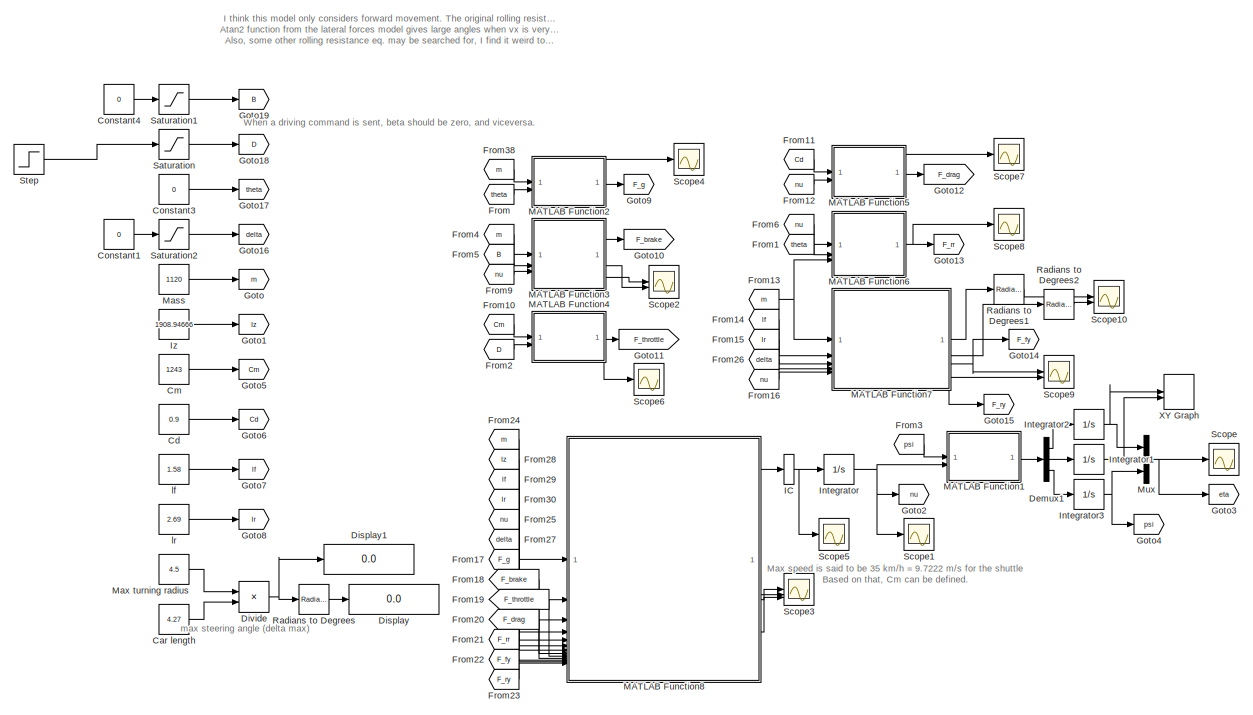
[diagram: root canvas - part 1/2, most of the canvas]
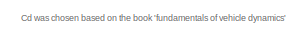
[diagram: root canvas - part 2/2, middle left region]
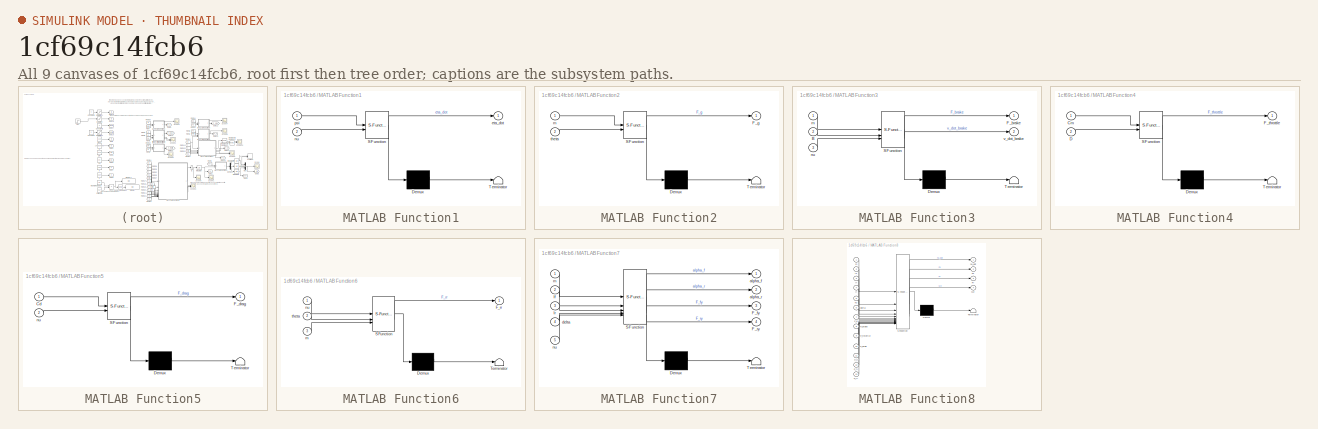
[diagram: thumbnail index - all 9 canvases of the model, root first then tree order]
MODEL slx_1cf69c14fcb6
KIND model
CONFIG AbsTol = 1e-4
CONFIG EnableMultiTasking = off
CONFIG FixedStep = 0.01
CONFIG MaxStep = auto
CONFIG MinStep = auto
CONFIG RelTol = 1e-4
CONFIG SampleTimeConstraint = Unconstrained
CONFIG SolverName = ode1be
CONFIG StartTime = 0.0
CONFIG StopTime = 100
BLOCK [Constant] Car length
  Value = 4.27
BLOCK [Constant] Cd
  Value = 0.9
BLOCK [Constant] Cm
  Value = 1243
BLOCK [Constant] Constant1
  Value = 0
BLOCK [Constant] Constant3
  Value = 0
BLOCK [Constant] Constant4
  Value = 0
BLOCK [Demux] Demux1
  Outputs = 3
BLOCK [Display] Display
  Decimation = 1
BLOCK [Display] Display1
  Decimation = 1
BLOCK [Product] Divide
  Inputs = */
BLOCK [From] From
  GotoTag = theta
BLOCK [From] From1
  GotoTag = theta
BLOCK [From] From10
  GotoTag = Cm
BLOCK [From] From11
  GotoTag = Cd
BLOCK [From] From12
  GotoTag = nu
BLOCK [From] From13
  GotoTag = m
BLOCK [From] From14
  GotoTag = lf
BLOCK [From] From15
  GotoTag = lr
BLOCK [From] From16
  GotoTag = nu
BLOCK [From] From17
  GotoTag = F_g
BLOCK [From] From18
  GotoTag = F_brake
BLOCK [From] From19
  GotoTag = F_throttle
BLOCK [From] From2
  GotoTag = D
BLOCK [From] From20
  GotoTag = F_drag
BLOCK [From] From21
  GotoTag = F_rr
BLOCK [From] From22
  GotoTag = F_fy
BLOCK [From] From23
  GotoTag = F_ry
BLOCK [From] From24
  GotoTag = m
BLOCK [From] From25
  GotoTag = nu
BLOCK [From] From26
  GotoTag = delta
BLOCK [From] From27
  GotoTag = delta
BLOCK [From] From28
  GotoTag = Iz
BLOCK [From] From29
  GotoTag = lf
BLOCK [From] From3
  GotoTag = psi
BLOCK [From] From30
  GotoTag = lr
BLOCK [From] From38
  GotoTag = m
BLOCK [From] From4
  GotoTag = m
BLOCK [From] From5
  GotoTag = B
BLOCK [From] From6
  GotoTag = nu
BLOCK [From] From9
  GotoTag = nu
BLOCK [Goto] Goto
  GotoTag = m
BLOCK [Goto] Goto1
  GotoTag = Iz
BLOCK [Goto] Goto10
  GotoTag = F_brake
BLOCK [Goto] Goto11
  GotoTag = F_throttle
BLOCK [Goto] Goto12
  GotoTag = F_drag
BLOCK [Goto] Goto13
  GotoTag = F_rr
BLOCK [Goto] Goto14
  GotoTag = F_fy
BLOCK [Goto] Goto15
  GotoTag = F_ry
BLOCK [Goto] Goto16
  GotoTag = delta
BLOCK [Goto] Goto17
  GotoTag = theta
BLOCK [Goto] Goto18
  GotoTag = D
BLOCK [Goto] Goto19
  GotoTag = B
BLOCK [Goto] Goto2
  GotoTag = nu
BLOCK [Goto] Goto3
  Commented = on
  GotoTag = eta
BLOCK [Goto] Goto4
  GotoTag = psi
BLOCK [Goto] Goto5
  GotoTag = Cm
BLOCK [Goto] Goto6
  GotoTag = Cd
BLOCK [Goto] Goto7
  GotoTag = lf
BLOCK [Goto] Goto8
  GotoTag = lr
BLOCK [Goto] Goto9
  GotoTag = F_g
BLOCK [InitialCondition] IC
  Value = [0;0;0]
BLOCK [Integrator] Integrator
BLOCK [Integrator] Integrator1
BLOCK [Integrator] Integrator2
BLOCK [Integrator] Integrator3
  WrapState = on
BLOCK [Constant] Iz
  Value = 1908.94666
BLOCK [SubSystem] MATLAB Function1
  ErrorFcn = Stateflow.Translate.translate
  PermitHierarchicalResolution = ExplicitOnly
  SFBlockType = MATLAB Function
  TreatAsAtomicUnit = on
BLOCK [Demux] MATLAB Function1/ Demux 
  Outputs = 1
BLOCK [S-Function] MATLAB Function1/ SFunction 
  EnableBusSupport = on
  FunctionName = sf_sfun
  PortCounts = [2 2]
  SFcnIsStateOwnerBlock = off
  SFunctionDeploymentMode = off
  Tag = Stateflow S-Function 1
BLOCK [Terminator] MATLAB Function1/ Terminator 
BLOCK [Outport] MATLAB Function1/eta_dot
BLOCK [Inport] MATLAB Function1/nu
  Port = 2
BLOCK [Inport] MATLAB Function1/psi
BLOCK [SubSystem] MATLAB Function2
  ErrorFcn = Stateflow.Translate.translate
  LibrarySourceBlock = simulink/User-Defined\nFunctions/MATLAB Function
  PermitHierarchicalResolution = ExplicitOnly
  SFBlockType = MATLAB Function
  TreatAsAtomicUnit = on
BLOCK [Demux] MATLAB Function2/ Demux 
  Outputs = 1
BLOCK [S-Function] MATLAB Function2/ SFunction 
  EnableBusSupport = on
  FunctionName = sf_sfun
  PortCounts = [2 2]
  SFcnIsStateOwnerBlock = off
  SFunctionDeploymentMode = off
  Tag = Stateflow S-Function 3
BLOCK [Terminator] MATLAB Function2/ Terminator 
BLOCK [Outport] MATLAB Function2/F_g
BLOCK [Inport] MATLAB Function2/m
BLOCK [Inport] MATLAB Function2/theta
  Port = 2
BLOCK [SubSystem] MATLAB Function3
  ErrorFcn = Stateflow.Translate.translate
  LibrarySourceBlock = simulink/User-Defined\nFunctions/MATLAB Function
  PermitHierarchicalResolution = ExplicitOnly
  SFBlockType = MATLAB Function
  TreatAsAtomicUnit = on
BLOCK [Demux] MATLAB Function3/ Demux 
  Outputs = 1
BLOCK [S-Function] MATLAB Function3/ SFunction 
  EnableBusSupport = on
  FunctionName = sf_sfun
  PortCounts = [3 3]
  SFcnIsStateOwnerBlock = off
  SFunctionDeploymentMode = off
  Tag = Stateflow S-Function 4
BLOCK [Terminator] MATLAB Function3/ Terminator 
BLOCK [Inport] MATLAB Function3/B
  Port = 2
BLOCK [Outport] MATLAB Function3/F_brake
BLOCK [Inport] MATLAB Function3/m
BLOCK [Inport] MATLAB Function3/nu
  Port = 3
BLOCK [Outport] MATLAB Function3/v_dot_brake
  Port = 2
BLOCK [SubSystem] MATLAB Function4
  ErrorFcn = Stateflow.Translate.translate
  LibrarySourceBlock = simulink/User-Defined\nFunctions/MATLAB Function
  PermitHierarchicalResolution = ExplicitOnly
  SFBlockType = MATLAB Function
  TreatAsAtomicUnit = on
BLOCK [Demux] MATLAB Function4/ Demux 
  Outputs = 1
BLOCK [S-Function] MATLAB Function4/ SFunction 
  EnableBusSupport = on
  FunctionName = sf_sfun
  PortCounts = [2 2]
  SFcnIsStateOwnerBlock = off
  SFunctionDeploymentMode = off
  Tag = Stateflow S-Function 5
BLOCK [Terminator] MATLAB Function4/ Terminator 
BLOCK [Inport] MATLAB Function4/Cm
BLOCK [Inport] MATLAB Function4/D
  Port = 2
BLOCK [Outport] MATLAB Function4/F_throttle
BLOCK [SubSystem] MATLAB Function5
  ErrorFcn = Stateflow.Translate.translate
  LibrarySourceBlock = simulink/User-Defined\nFunctions/MATLAB Function
  PermitHierarchicalResolution = ExplicitOnly
  SFBlockType = MATLAB Function
  TreatAsAtomicUnit = on
BLOCK [Demux] MATLAB Function5/ Demux 
  Outputs = 1
BLOCK [S-Function] MATLAB Function5/ SFunction 
  EnableBusSupport = on
  FunctionName = sf_sfun
  PortCounts = [2 2]
  SFcnIsStateOwnerBlock = off
  SFunctionDeploymentMode = off
  Tag = Stateflow S-Function 6
BLOCK [Terminator] MATLAB Function5/ Terminator 
BLOCK [Inport] MATLAB Function5/Cd
BLOCK [Outport] MATLAB Function5/F_drag
BLOCK [Inport] MATLAB Function5/nu
  Port = 2
BLOCK [SubSystem] MATLAB Function6
  ErrorFcn = Stateflow.Translate.translate
  LibrarySourceBlock = simulink/User-Defined\nFunctions/MATLAB Function
  PermitHierarchicalResolution = ExplicitOnly
  SFBlockType = MATLAB Function
  TreatAsAtomicUnit = on
BLOCK [Demux] MATLAB Function6/ Demux 
  Outputs = 1
BLOCK [S-Function] MATLAB Function6/ SFunction 
  EnableBusSupport = on
  FunctionName = sf_sfun
  PortCounts = [3 2]
  SFcnIsStateOwnerBlock = off
  SFunctionDeploymentMode = off
  Tag = Stateflow S-Function 7
BLOCK [Terminator] MATLAB Function6/ Terminator 
BLOCK [Outport] MATLAB Function6/F_rr
BLOCK [Inport] MATLAB Function6/m
  Port = 3
BLOCK [Inport] MATLAB Function6/nu
BLOCK [Inport] MATLAB Function6/theta
  Port = 2
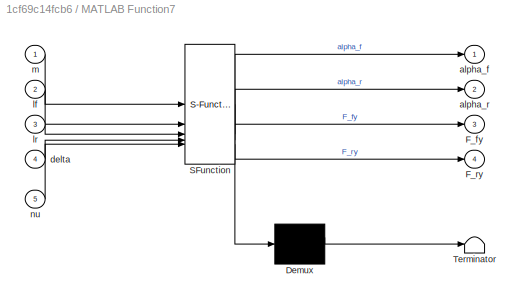
BLOCK [SubSystem] MATLAB Function7
  ErrorFcn = Stateflow.Translate.translate
  LibrarySourceBlock = simulink/User-Defined\nFunctions/MATLAB Function
  PermitHierarchicalResolution = ExplicitOnly
  SFBlockType = MATLAB Function
  TreatAsAtomicUnit = on
BLOCK [Demux] MATLAB Function7/ Demux 
  Outputs = 1
BLOCK [S-Function] MATLAB Function7/ SFunction 
  EnableBusSupport = on
  FunctionName = sf_sfun
  PortCounts = [5 5]
  SFcnIsStateOwnerBlock = off
  SFunctionDeploymentMode = off
  Tag = Stateflow S-Function 8
BLOCK [Terminator] MATLAB Function7/ Terminator 
BLOCK [Outport] MATLAB Function7/F_fy
  Port = 3
BLOCK [Outport] MATLAB Function7/F_ry
  Port = 4
BLOCK [Outport] MATLAB Function7/alpha_f
BLOCK [Outport] MATLAB Function7/alpha_r
  Port = 2
BLOCK [Inport] MATLAB Function7/delta
  Port = 4
BLOCK [Inport] MATLAB Function7/lf
  Port = 2
BLOCK [Inport] MATLAB Function7/lr
  Port = 3
BLOCK [Inport] MATLAB Function7/m
BLOCK [Inport] MATLAB Function7/nu
  Port = 5
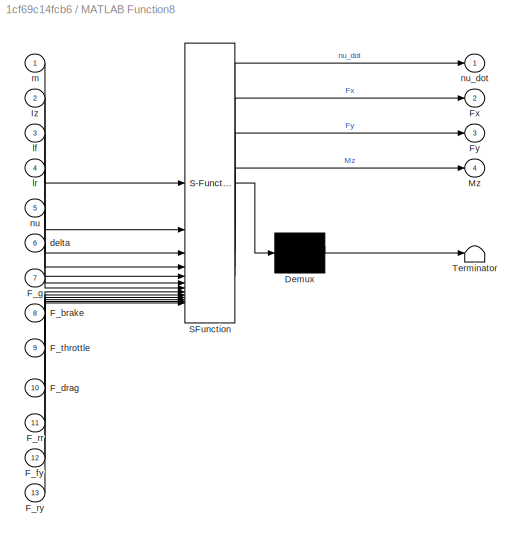
BLOCK [SubSystem] MATLAB Function8
  ErrorFcn = Stateflow.Translate.translate
  LibrarySourceBlock = simulink/User-Defined\nFunctions/MATLAB Function
  PermitHierarchicalResolution = ExplicitOnly
  SFBlockType = MATLAB Function
  TreatAsAtomicUnit = on
BLOCK [Demux] MATLAB Function8/ Demux 
  Outputs = 1
BLOCK [S-Function] MATLAB Function8/ SFunction 
  EnableBusSupport = on
  FunctionName = sf_sfun
  PortCounts = [13 5]
  SFcnIsStateOwnerBlock = off
  SFunctionDeploymentMode = off
  Tag = Stateflow S-Function 9
BLOCK [Terminator] MATLAB Function8/ Terminator 
BLOCK [Inport] MATLAB Function8/F_brake
  Port = 8
BLOCK [Inport] MATLAB Function8/F_drag
  Port = 10
BLOCK [Inport] MATLAB Function8/F_fy
  Port = 12
BLOCK [Inport] MATLAB Function8/F_g
  Port = 7
BLOCK [Inport] MATLAB Function8/F_rr
  Port = 11
BLOCK [Inport] MATLAB Function8/F_ry
  Port = 13
BLOCK [Inport] MATLAB Function8/F_throttle
  Port = 9
BLOCK [Outport] MATLAB Function8/Fx
  Port = 2
BLOCK [Outport] MATLAB Function8/Fy
  Port = 3
BLOCK [Inport] MATLAB Function8/Iz
  Port = 2
BLOCK [Outport] MATLAB Function8/Mz
  Port = 4
BLOCK [Inport] MATLAB Function8/delta
  Port = 6
BLOCK [Inport] MATLAB Function8/lf
  Port = 3
BLOCK [Inport] MATLAB Function8/lr
  Port = 4
BLOCK [Inport] MATLAB Function8/m
BLOCK [Inport] MATLAB Function8/nu
  Port = 5
BLOCK [Outport] MATLAB Function8/nu_dot
BLOCK [Constant] Mass
  Value = 1120
BLOCK [Constant] Max turning radius
  Value = 4.5
BLOCK [Mux] Mux
  DisplayOption = bar
  Inputs = 3
BLOCK [Reference] Radians to Degrees  REF=simulink_extras/Transformations/Radians
to Degrees
  SourceBlock = simulink_extras/Transformations/Radians\nto Degrees
  SourceType = RadiansToDegrees
BLOCK [Reference] Radians to Degrees1  REF=simulink_extras/Transformations/Radians
to Degrees
  SourceBlock = simulink_extras/Transformations/Radians\nto Degrees
  SourceType = RadiansToDegrees
BLOCK [Reference] Radians to Degrees2  REF=simulink_extras/Transformations/Radians
to Degrees
  SourceBlock = simulink_extras/Transformations/Radians\nto Degrees
  SourceType = RadiansToDegrees
BLOCK [Saturate] Saturation
  LowerLimit = 0
  UpperLimit = 1
BLOCK [Saturate] Saturation1
  LowerLimit = 0
  UpperLimit = 1
BLOCK [Saturate] Saturation2
  LowerLimit = -1.054
  UpperLimit = 1.054
BLOCK [Scope] Scope
  Floating = off
  NumInputPorts = 1
  ScopeSpecificationString = Simulink.scopes.TimeScopeBlockCfg('CurrentConfiguration', extmgr.ConfigurationSet(extmgr.Configuration('Core','General UI',true),extmgr.Configuration('Core','Source UI',true),extmgr.Configuration('Sources','WiredSimulink',true,'DataLoggingVariableName','ScopeData1'),extmgr.Configuration('Visuals','Time Domain',true,'SerializedDisplays',{struct('MinYLimReal','-119.04209','MaxYLimReal','1071.37884',...<+1541ch>
BLOCK [Scope] Scope1
  Floating = off
  NumInputPorts = 1
  ScopeSpecificationString = Simulink.scopes.TimeScopeBlockCfg('CurrentConfiguration', extmgr.ConfigurationSet(extmgr.Configuration('Core','General UI',true),extmgr.Configuration('Core','Source UI',true),extmgr.Configuration('Sources','WiredSimulink',true,'DataLoggingVariableName','ScopeData2'),extmgr.Configuration('Visuals','Time Domain',true,'SerializedDisplays',{struct('MinYLimReal','-6.93638','MaxYLimReal','62.42746','YLa...<+1530ch>
BLOCK [Scope] Scope10
  Floating = off
  NumInputPorts = 2
  ScopeSpecificationString = Simulink.scopes.TimeScopeBlockCfg('CurrentConfiguration', extmgr.ConfigurationSet(extmgr.Configuration('Core','General UI',true),extmgr.Configuration('Core','Source UI',true),extmgr.Configuration('Sources','WiredSimulink',true,'DataLoggingVariableName','ScopeData1'),extmgr.Configuration('Visuals','Time Domain',true,'SerializedDisplays',{struct('MinYLimReal','-66.71306','MaxYLimReal','27.45973','YL...<+1519ch>
BLOCK [Scope] Scope2
  Floating = off
  NumInputPorts = 2
  ScopeSpecificationString = Simulink.scopes.TimeScopeBlockCfg('CurrentConfiguration', extmgr.ConfigurationSet(extmgr.Configuration('Core','General UI',true),extmgr.Configuration('Core','Source UI',true),extmgr.Configuration('Sources','WiredSimulink',true,'DataLoggingVariableName','ScopeData7'),extmgr.Configuration('Visuals','Time Domain',true,'SerializedDisplays',{struct('MinYLimReal','-1.00000','MaxYLimReal','1.00000','YLab...<+1521ch>
BLOCK [Scope] Scope3
  Floating = off
  NumInputPorts = 3
  ScopeSpecificationString = Simulink.scopes.TimeScopeBlockCfg('CurrentConfiguration', extmgr.ConfigurationSet(extmgr.Configuration('Core','General UI',true),extmgr.Configuration('Core','Source UI',true),extmgr.Configuration('Sources','WiredSimulink',true,'DataLoggingVariableName','ScopeData3'),extmgr.Configuration('Visuals','Time Domain',true,'SerializedDisplays',{struct('MinYLimReal','-1398.28774','MaxYLimReal','1072.57242'...<+1548ch>
BLOCK [Scope] Scope4
  Floating = off
  NumInputPorts = 1
  ScopeSpecificationString = Simulink.scopes.TimeScopeBlockCfg('CurrentConfiguration', extmgr.ConfigurationSet(extmgr.Configuration('Core','General UI',true),extmgr.Configuration('Core','Source UI',true),extmgr.Configuration('Sources','WiredSimulink',true,'DataLoggingVariableName','ScopeData2'),extmgr.Configuration('Visuals','Time Domain',true,'SerializedDisplays',{struct('MinYLimReal','-1.00000','MaxYLimReal','1.00000','YLab...<+1409ch>
BLOCK [Scope] Scope5
  Floating = off
  NumInputPorts = 1
  ScopeSpecificationString = Simulink.scopes.TimeScopeBlockCfg('CurrentConfiguration', extmgr.ConfigurationSet(extmgr.Configuration('Core','General UI',true),extmgr.Configuration('Core','Source UI',true),extmgr.Configuration('Sources','WiredSimulink',true,'DataLoggingVariableName','ScopeData1'),extmgr.Configuration('Visuals','Time Domain',true,'SerializedDisplays',{struct('MinYLimReal','-1.24847','MaxYLimReal','0.95765','YLab...<+1548ch>
BLOCK [Scope] Scope6
  Floating = off
  NumInputPorts = 1
  ScopeSpecificationString = Simulink.scopes.TimeScopeBlockCfg('CurrentConfiguration', extmgr.ConfigurationSet(extmgr.Configuration('Core','General UI',true),extmgr.Configuration('Core','Source UI',true),extmgr.Configuration('Sources','WiredSimulink',true,'DataLoggingVariableName','ScopeData3'),extmgr.Configuration('Visuals','Time Domain',true,'SerializedDisplays',{struct('MinYLimReal','-155.375','MaxYLimReal','1398.375','YLa...<+1458ch>
BLOCK [Scope] Scope7
  Floating = off
  NumInputPorts = 1
  ScopeSpecificationString = Simulink.scopes.TimeScopeBlockCfg('CurrentConfiguration', extmgr.ConfigurationSet(extmgr.Configuration('Core','General UI',true),extmgr.Configuration('Core','Source UI',true),extmgr.Configuration('Sources','WiredSimulink',true,'DataLoggingVariableName','ScopeData4'),extmgr.Configuration('Visuals','Time Domain',true,'SerializedDisplays',{struct('MinYLimReal','-1.00000','MaxYLimReal','1.00000','YLab...<+1415ch>
BLOCK [Scope] Scope8
  Floating = off
  NumInputPorts = 1
  ScopeSpecificationString = Simulink.scopes.TimeScopeBlockCfg('CurrentConfiguration', extmgr.ConfigurationSet(extmgr.Configuration('Core','General UI',true),extmgr.Configuration('Core','Source UI',true),extmgr.Configuration('Sources','WiredSimulink',true,'DataLoggingVariableName','ScopeData5'),extmgr.Configuration('Visuals','Time Domain',true,'SerializedDisplays',{struct('MinYLimReal','317.5136','MaxYLimReal','517.5136','YLa...<+1451ch>
BLOCK [Scope] Scope9
  Floating = off
  NumInputPorts = 2
  ScopeSpecificationString = Simulink.scopes.TimeScopeBlockCfg('CurrentConfiguration', extmgr.ConfigurationSet(extmgr.Configuration('Core','General UI',true),extmgr.Configuration('Core','Source UI',true),extmgr.Configuration('Sources','WiredSimulink',true,'DataLoggingVariableName','ScopeData6'),extmgr.Configuration('Visuals','Time Domain',true,'SerializedDisplays',{struct('MinYLimReal','-6491.91794','MaxYLimReal','58427.26143...<+1531ch>
BLOCK [Step] Step
  After = 0
  Before = 1
  SampleTime = 0
  Time = 50
BLOCK [Record] XY Graph
  CompatibilityTag = XY
  FileSettingsInternal = {"entries":[{"content":{"excelSettings":{"content":{},"type":"Streamout.ExcelSettings"}},"type":"Streamout.FileSettingStorage","uuid":""}],"packageUris":["http:\/\/schema.mathworks.com\/mf0\/streamout_blocks\/R2020a"],"version":"1.0"}
  Layout = [1 1]
  SignalsInternal = {"entries":[{"content":{"signals":[{"content":{"blockPath":[],"dimensions":[1],"domain":"","lineColor":"#a2142f","plots":[1],"port":1,"sid":[""],"signalID":582,"signalName":"Integrator2"},"type":"RecordBlkView.Signal","uuid":""},{"content":{"blockPath":[],"dimensions":[1],"domain":"","lineColor":"#139fff","plots":[1],"port":2,"sid":[""],"signalID":586,"signalName":"Integrator1"},"type":"RecordBlkV...<+168ch>
  VisualizationBindings = {"xyplotplugin":{"info":[{"series":[{"bindingParametersList":[{"parameter":"X-Axis","signalID":582,"signalName":"Integrator2"},{"parameter":"Y-Axis","signalID":586,"signalName":"Integrator1"}],"seriesID":10362}],"subplotID":1}]}}
  st = -1
BLOCK [Constant] lf
  Value = 1.58
BLOCK [Constant] lr
  Value = 2.69
ANNOTATION (root): Cd was chosen based on the book 'fundamentals of vehicle dynamics'
ANNOTATION (root): I think this model only considers forward movement. The original rolling resistance, drag and brake does not work well when reverse is wanted; something else should be made in the future. Atan2 function from the lateral forces model gives large angles when vx is very close to zero, which gives in turn very large forces; current solution gives better results, but something else may be used to adres...<+164ch>
ANNOTATION (root): Max speed is said to be 35 km/h = 9.7222 m/s for the shuttle Based on that, Cm can be defined.
ANNOTATION (root): When a driving command is sent, beta should be zero, and viceversa.
ANNOTATION (root): max steering angle (delta max)
LINE Car length:1 -> Divide:2
LINE Cd:1 -> Goto6:1
LINE Cm:1 -> Goto5:1
LINE Constant1:1 -> Saturation2:1
LINE Constant3:1 -> Goto17:1
LINE Constant4:1 -> Saturation1:1
LINE Demux1:1 -> Integrator2:1
LINE Demux1:2 -> Integrator1:1
LINE Demux1:3 -> Integrator3:1
NET Divide:1 -> Display1:1, Radians to Degrees:1
LINE From10:1 -> MATLAB Function4:1
LINE From11:1 -> MATLAB Function5:1
LINE From12:1 -> MATLAB Function5:2
NET From13:1 -> MATLAB Function6:3, MATLAB Function7:1
LINE From14:1 -> MATLAB Function7:2
LINE From15:1 -> MATLAB Function7:3
LINE From16:1 -> MATLAB Function7:5
LINE From17:1 -> MATLAB Function8:7
LINE From18:1 -> MATLAB Function8:8
LINE From19:1 -> MATLAB Function8:9
LINE From1:1 -> MATLAB Function6:2
LINE From20:1 -> MATLAB Function8:10
LINE From21:1 -> MATLAB Function8:11
LINE From22:1 -> MATLAB Function8:12
LINE From23:1 -> MATLAB Function8:13
LINE From24:1 -> MATLAB Function8:1
LINE From25:1 -> MATLAB Function8:5
LINE From26:1 -> MATLAB Function7:4
LINE From27:1 -> MATLAB Function8:6
LINE From28:1 -> MATLAB Function8:2
LINE From29:1 -> MATLAB Function8:3
LINE From2:1 -> MATLAB Function4:2
LINE From30:1 -> MATLAB Function8:4
LINE From38:1 -> MATLAB Function2:1
LINE From3:1 -> MATLAB Function1:1
LINE From4:1 -> MATLAB Function3:1
LINE From5:1 -> MATLAB Function3:2
LINE From6:1 -> MATLAB Function6:1
LINE From9:1 -> MATLAB Function3:3
LINE From:1 -> MATLAB Function2:2
NET IC:1 -> Integrator:1, Scope5:1
NET Integrator1:1 -> Mux:2, XY Graph:2
NET Integrator2:1 -> Mux:1, XY Graph:1
NET Integrator3:1 -> Goto4:1, Mux:3
NET Integrator:1 -> Goto2:1, MATLAB Function1:2, Scope1:1
LINE Iz:1 -> Goto1:1
LINE MATLAB Function1:1 -> Demux1:1
NET MATLAB Function2:1 -> Goto9:1, Scope4:1
NET MATLAB Function3:1 -> Goto10:1, Scope2:1
LINE MATLAB Function3:2 -> Scope2:2
NET MATLAB Function4:1 -> Goto11:1, Scope6:1
NET MATLAB Function5:1 -> Goto12:1, Scope7:1
NET MATLAB Function6:1 -> Goto13:1, Scope8:1
LINE MATLAB Function7:1 -> Radians to Degrees1:1
LINE MATLAB Function7:2 -> Radians to Degrees2:1
NET MATLAB Function7:3 -> Goto14:1, Scope9:1
NET MATLAB Function7:4 -> Goto15:1, Scope9:2
LINE MATLAB Function8:1 -> IC:1
LINE MATLAB Function8:2 -> Scope3:1
LINE MATLAB Function8:3 -> Scope3:2
LINE MATLAB Function8:4 -> Scope3:3
LINE Mass:1 -> Goto:1
LINE Max turning radius:1 -> Divide:1
NET Mux:1 -> Goto3:1, Scope:1
LINE Radians to Degrees1:1 -> Scope10:1
LINE Radians to Degrees2:1 -> Scope10:2
LINE Radians to Degrees:1 -> Display:1
LINE Saturation1:1 -> Goto19:1
LINE Saturation2:1 -> Goto16:1
LINE Saturation:1 -> Goto18:1
LINE Step:1 -> Saturation:1
LINE lf:1 -> Goto7:1
LINE lr:1 -> Goto8:1
note: NET lines group one-source signal fan-out (src -> all destinations, sorted); 1:1 wires keep LINE
CHART MATLAB Function1 states=1 transitions=1
  STATE_LABEL 'eML_blk_kernel()'
  STATE_LABEL 'SCRIPT:\nfunction eta_dot = kinematics(psi, nu)\n    R = [cos(psi) -sin(psi) 0;\n         sin(psi) cos(psi) 0;\n         0 0 1];\n    \n     eta_dot = R*nu;\nend'
CHART MATLAB Function2 states=1 transitions=1
  STATE_LABEL 'eML_blk_kernel()'
  STATE_LABEL 'SCRIPT:\nfunction F_g = Gravity(m,theta)\n    % theta : vehicle pitch angle\n    g = 9.81;\n    \n    F_g = m*g*sin(theta);\nend'
CHART MATLAB Function3 states=1 transitions=1
  STATE_LABEL 'eML_blk_kernel()'
  STATE_LABEL "SCRIPT:\nfunction [F_brake,v_dot_brake]= Brake(m,B,nu)\n    % B : pedal brake command (or position) [0, 1]\n    \n    vx = nu(1);\n    % If this condition is not set, the simulation breaks as velocities\n    % tend to infinity\n    if(vx > 0)\n        % I don't think the original model consider reverse motion nor\n        % standstill situations.\n        % Moreover, this model could lend excesive forces. A...<+307ch>"
CHART MATLAB Function4 states=1 transitions=1
  STATE_LABEL 'eML_blk_kernel()'
  STATE_LABEL 'SCRIPT:\nfunction F_throttle = Throttle(Cm,D)\n    % Cm : motor model constant\n    % D : throttle command (or position) [0, 1]\n\n    F_throttle = Cm*D;\nend'
CHART MATLAB Function5 states=1 transitions=1
  STATE_LABEL 'eML_blk_kernel()'
  STATE_LABEL 'SCRIPT:\nfunction F_drag = Drag(Cd,nu)\n    % D : throttle command (or position) [0, 1]\n    % ro : air density\n    % A : transversal area\n    % Cd : drag coefficient\n\n    vx = nu(1);\n    ro = 1.225;\n    A = 3.426;\n    \n    F_drag = 0.5*ro*A*Cd*vx^2;\nend'
CHART MATLAB Function6 states=1 transitions=1
  STATE_LABEL 'eML_blk_kernel()'
  STATE_LABEL 'SCRIPT:\nfunction F_rr = Rolling_Resistance(nu,theta,m)\n    % fr : rolling resistance coefficient\n\n    fr = 0.038; % For passenger cars, from fundamentals of vehicle dynamics book\n\n    % This resistance force does does not consider standstill\n    % situations. If the vehicle is at rest, the car moves backwards\n    F_rr = m*9.81*fr*cos(theta); % From fundamentals of vehicle dynamics book\n\nend'
CHART MATLAB Function7 states=1 transitions=1
  STATE_LABEL 'eML_blk_kernel()'
  STATE_LABEL 'SCRIPT:\nfunction [alpha_f,alpha_r,F_fy, F_ry]= Lateral_Forces(m,lf,lr,delta,nu)\n    % delta : steering angle\n    % theta_vf : front tire velocity angle\n    % theta_vr : rear tire velocity angle\n    % C_alpha : tire cornering stiffness (assuming being equal for all tires)\n\n    vx = nu(1);\n    vy = nu(2);\n    r = nu(3);\n\n    % C alpha calculated from this webpage: https://www.mchenrysoftware.com/med...<+667ch>'
CHART MATLAB Function8 states=1 transitions=1
  STATE_LABEL 'eML_blk_kernel()'
  STATE_LABEL 'SCRIPT:\nfunction [nu_dot,Fx,Fy,Mz]= Forward_Dynamics(m,Iz,lf,lr,nu,delta,F_g,F_brake,F_throttle,F_drag,F_rr,F_fy,F_ry)\n    vx = nu(1);\n    vy = nu(2);\n    r = nu(3);\n    \n    % Next condition was set so the vehicle does not move backwards when\n    % the throttle force is less than the resistance\n    if(F_rr >= F_throttle && vx<0.01)\n        F_rr = F_throttle;\n    end\n    Fx = F_brake + F_throttle ...<+261ch>'
CHART  states=0 transitions=0
CHART  states=0 transitions=0
CHART  states=0 transitions=0
CHART  states=0 transitions=0
CHART  states=0 transitions=0
CHART  states=0 transitions=0
CHART  states=0 transitions=0
CHART  states=0 transitions=0
